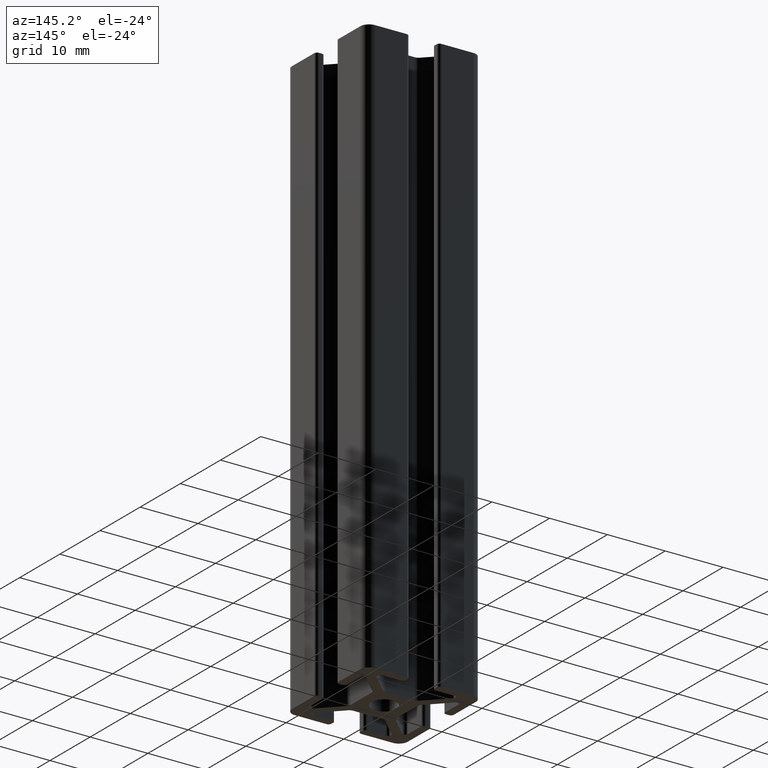
[diagram: clean part render]
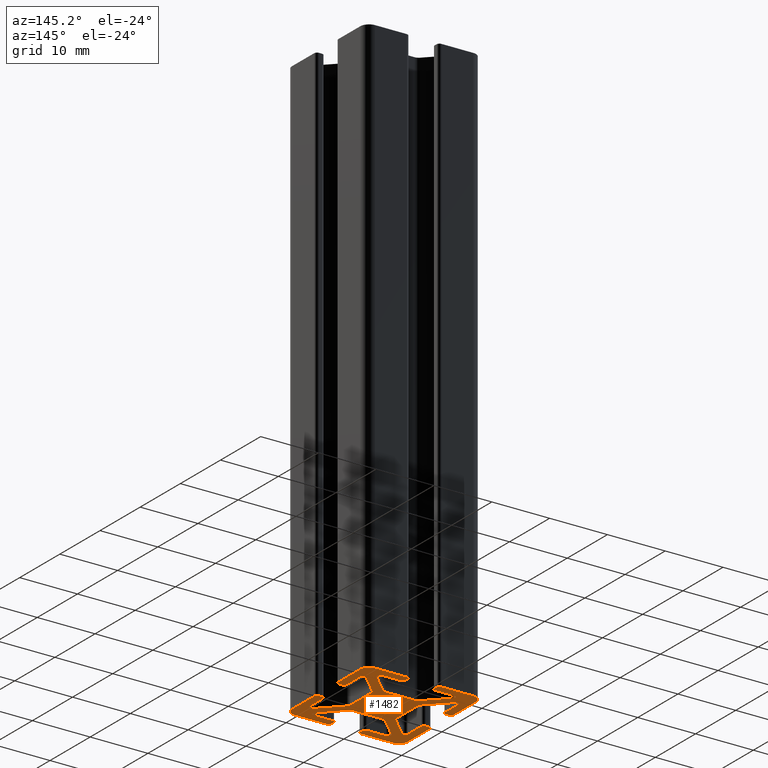
[diagram: same view with one face highlighted and labeled with its STEP entity id]
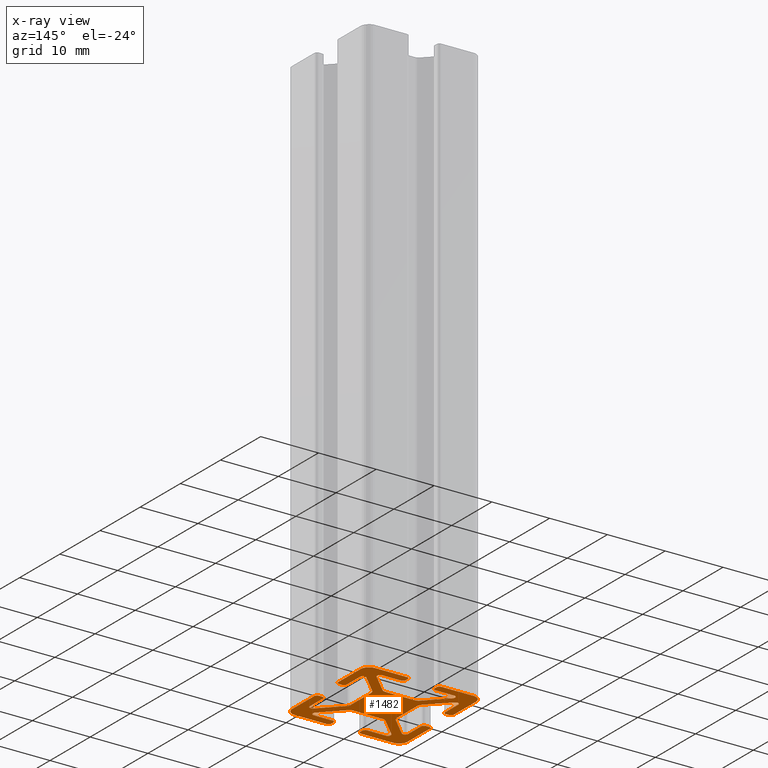
[diagram: x-ray of the same camera — body ghosted, the highlighted face saturated]
A machine part, auxiliary view. The second image highlights one B-rep face of the part: STEP entity #1482.
The next image is the same camera in x-ray: the body ghosted, the highlighted face saturated — about 0% of this face is hidden behind the body in this view.
In plain terms, the highlighted planar face has unit normal (0, 0, 1).
Its self-contained STEP definition (entity closure, byte-faithful):
#17=FACE_BOUND('',#208,.T.);
#55=PLANE('',#1633);
#130=FACE_OUTER_BOUND('',#207,.T.);
#207=EDGE_LOOP('',(#1298,#1299,#1300,#1301,#1302,#1303,#1304,#1305,#1306,
#1307,#1308,#1309,#1310,#1311,#1312,#1313,#1314,#1315,#1316,#1317,#1318,
#1319,#1320,#1321,#1322,#1323,#1324,#1325,#1326,#1327,#1328,#1329,#1330,
#1331,#1332,#1333,#1334,#1335,#1336,#1337,#1338,#1339,#1340,#1341,#1342,
#1343,#1344,#1345,#1346,#1347,#1348,#1349,#1350,#1351,#1352,#1353,#1354,
#1355,#1356,#1357,#1358,#1359,#1360,#1361,#1362,#1363,#1364,#1365,#1366,
#1367,#1368,#1369));
#208=EDGE_LOOP('',(#1370));
#212=LINE('',#2092,#356);
#216=LINE('',#2104,#360);
#220=LINE('',#2116,#364);
#224=LINE('',#2128,#368);
#228=LINE('',#2140,#372);
#232=LINE('',#2152,#376);
#236=LINE('',#2164,#380);
#241=LINE('',#2184,#385);
#246=LINE('',#2197,#390);
#250=LINE('',#2209,#394);
#254=LINE('',#2221,#398);
#258=LINE('',#2233,#402);
#262=LINE('',#2245,#406);
#268=LINE('',#2266,#412);
#271=LINE('',#2277,#415);
#277=LINE('',#2298,#421);
#281=LINE('',#2310,#425);
#285=LINE('',#2322,#429);
#289=LINE('',#2334,#433);
#293=LINE('',#2346,#437);
#297=LINE('',#2358,#441);
#303=LINE('',#2377,#447);
#307=LINE('',#2389,#451);
#311=LINE('',#2401,#455);
#315=LINE('',#2413,#459);
#321=LINE('',#2434,#465);
#325=LINE('',#2446,#469);
#328=LINE('',#2455,#472);
#329=LINE('',#2458,#473);
#334=LINE('',#2467,#478);
#335=LINE('',#2470,#479);
#340=LINE('',#2479,#484);
#341=LINE('',#2482,#485);
#344=LINE('',#2488,#488);
#349=LINE('',#2497,#493);
#352=LINE('',#2512,#496);
#356=VECTOR('',#1647,0.499999999999998);
#360=VECTOR('',#1659,3.23223304703363);
#364=VECTOR('',#1671,4.74264068711928);
#368=VECTOR('',#1683,5.05025253169417);
#372=VECTOR('',#1695,4.74264068711928);
#376=VECTOR('',#1707,3.23223304703364);
#380=VECTOR('',#1719,0.500000000000003);
#385=VECTOR('',#1738,3.23223304703363);
#390=VECTOR('',#1751,4.74264068711928);
#394=VECTOR('',#1763,5.05025253169417);
#398=VECTOR('',#1775,4.74264068711927);
#402=VECTOR('',#1787,3.23223304703363);
#406=VECTOR('',#1799,0.5);
#412=VECTOR('',#1819,0.5);
#415=VECTOR('',#1830,0.500000000000003);
#421=VECTOR('',#1850,0.499999999999998);
#425=VECTOR('',#1862,3.23223304703363);
#429=VECTOR('',#1874,4.74264068711928);
#433=VECTOR('',#1886,5.05025253169418);
#437=VECTOR('',#1898,4.74264068711928);
#441=VECTOR('',#1910,3.23223304703363);
#447=VECTOR('',#1930,5.05025253169418);
#451=VECTOR('',#1942,4.74264068711929);
#455=VECTOR('',#1954,3.23223304703364);
#459=VECTOR('',#1966,0.500000000000002);
#465=VECTOR('',#1986,0.499999999999998);
#469=VECTOR('',#1998,3.23223304703363);
#472=VECTOR('',#2009,4.74264068711928);
#473=VECTOR('',#2012,5.50000000000003);
#478=VECTOR('',#2019,5.50000000000001);
#479=VECTOR('',#2022,5.49999999999999);
#484=VECTOR('',#2029,5.50000000000001);
#485=VECTOR('',#2032,5.50000000000001);
#488=VECTOR('',#2037,5.49999999999999);
#493=VECTOR('',#2044,5.49999999999999);
#496=VECTOR('',#2067,5.50000000000001);
#498=CIRCLE('',#1487,0.5);
#500=CIRCLE('',#1491,0.500000000000004);
#502=CIRCLE('',#1495,0.5);
#504=CIRCLE('',#1499,0.999999999999998);
#506=CIRCLE('',#1503,0.999999999999996);
#508=CIRCLE('',#1507,0.500000000000002);
#510=CIRCLE('',#1511,0.5);
#512=CIRCLE('',#1515,0.499999999999997);
#514=CIRCLE('',#1518,2.15);
#516=CIRCLE('',#1522,0.499999999999999);
#518=CIRCLE('',#1526,1.);
#520=CIRCLE('',#1530,0.999999999999999);
#522=CIRCLE('',#1534,0.500000000000001);
#524=CIRCLE('',#1538,0.5);
#526=CIRCLE('',#1542,0.499999999999998);
#528=CIRCLE('',#1545,0.5);
#530=CIRCLE('',#1549,0.5);
#532=CIRCLE('',#1553,0.5);
#534=CIRCLE('',#1556,0.5);
#536=CIRCLE('',#1560,0.5);
#538=CIRCLE('',#1564,0.500000000000004);
#540=CIRCLE('',#1568,1.);
#542=CIRCLE('',#1572,1.);
#544=CIRCLE('',#1576,0.500000000000002);
#546=CIRCLE('',#1580,0.5);
#548=CIRCLE('',#1583,0.999999999999996);
#550=CIRCLE('',#1587,0.999999999999997);
#552=CIRCLE('',#1591,0.5);
#554=CIRCLE('',#1595,0.5);
#556=CIRCLE('',#1599,0.5);
#558=CIRCLE('',#1602,0.5);
#560=CIRCLE('',#1606,0.5);
#562=CIRCLE('',#1610,0.5);
#567=CIRCLE('',#1625,1.5);
#568=CIRCLE('',#1627,1.5);
#569=CIRCLE('',#1630,1.5);
#570=CIRCLE('',#1632,1.5);
#573=VERTEX_POINT('',#2083);
#574=VERTEX_POINT('',#2085);
#576=VERTEX_POINT('',#2091);
#578=VERTEX_POINT('',#2097);
#580=VERTEX_POINT('',#2103);
#582=VERTEX_POINT('',#2109);
#584=VERTEX_POINT('',#2115);
#586=VERTEX_POINT('',#2121);
#588=VERTEX_POINT('',#2127);
#590=VERTEX_POINT('',#2133);
#592=VERTEX_POINT('',#2139);
#594=VERTEX_POINT('',#2145);
#596=VERTEX_POINT('',#2151);
#598=VERTEX_POINT('',#2157);
#600=VERTEX_POINT('',#2163);
#602=VERTEX_POINT('',#2169);
#604=VERTEX_POINT('',#2175);
#607=VERTEX_POINT('',#2181);
#608=VERTEX_POINT('',#2183);
#610=VERTEX_POINT('',#2189);
#612=VERTEX_POINT('',#2195);
#614=VERTEX_POINT('',#2201);
#616=VERTEX_POINT('',#2207);
#618=VERTEX_POINT('',#2213);
#620=VERTEX_POINT('',#2219);
#622=VERTEX_POINT('',#2225);
#624=VERTEX_POINT('',#2231);
#626=VERTEX_POINT('',#2237);
#628=VERTEX_POINT('',#2243);
#630=VERTEX_POINT('',#2249);
#633=VERTEX_POINT('',#2256);
#634=VERTEX_POINT('',#2258);
#636=VERTEX_POINT('',#2264);
#639=VERTEX_POINT('',#2274);
#640=VERTEX_POINT('',#2276);
#642=VERTEX_POINT('',#2282);
#645=VERTEX_POINT('',#2289);
#646=VERTEX_POINT('',#2291);
#648=VERTEX_POINT('',#2297);
#650=VERTEX_POINT('',#2303);
#652=VERTEX_POINT('',#2309);
#654=VERTEX_POINT('',#2315);
#656=VERTEX_POINT('',#2321);
#658=VERTEX_POINT('',#2327);
#660=VERTEX_POINT('',#2333);
#662=VERTEX_POINT('',#2339);
#664=VERTEX_POINT('',#2345);
#666=VERTEX_POINT('',#2351);
#668=VERTEX_POINT('',#2357);
#671=VERTEX_POINT('',#2367);
#672=VERTEX_POINT('',#2369);
#674=VERTEX_POINT('',#2375);
#676=VERTEX_POINT('',#2381);
#678=VERTEX_POINT('',#2387);
#680=VERTEX_POINT('',#2393);
#682=VERTEX_POINT('',#2399);
#684=VERTEX_POINT('',#2405);
#686=VERTEX_POINT('',#2411);
#688=VERTEX_POINT('',#2417);
#691=VERTEX_POINT('',#2424);
#692=VERTEX_POINT('',#2426);
#694=VERTEX_POINT('',#2432);
#696=VERTEX_POINT('',#2438);
#698=VERTEX_POINT('',#2444);
#700=VERTEX_POINT('',#2450);
#701=VERTEX_POINT('',#2457);
#704=VERTEX_POINT('',#2465);
#705=VERTEX_POINT('',#2469);
#708=VERTEX_POINT('',#2477);
#709=VERTEX_POINT('',#2481);
#711=VERTEX_POINT('',#2487);
#714=VERTEX_POINT('',#2495);
#716=VERTEX_POINT('',#2510);
#719=EDGE_CURVE('',#574,#573,#498,.T.);
#722=EDGE_CURVE('',#576,#574,#212,.T.);
#725=EDGE_CURVE('',#578,#576,#500,.T.);
#728=EDGE_CURVE('',#580,#578,#216,.T.);
#731=EDGE_CURVE('',#582,#580,#502,.T.);
#734=EDGE_CURVE('',#584,#582,#220,.T.);
#737=EDGE_CURVE('',#586,#584,#504,.T.);
#740=EDGE_CURVE('',#588,#586,#224,.T.);
#743=EDGE_CURVE('',#590,#588,#506,.T.);
#746=EDGE_CURVE('',#592,#590,#228,.T.);
#749=EDGE_CURVE('',#594,#592,#508,.T.);
#752=EDGE_CURVE('',#596,#594,#232,.T.);
#755=EDGE_CURVE('',#598,#596,#510,.T.);
#758=EDGE_CURVE('',#600,#598,#236,.T.);
#761=EDGE_CURVE('',#602,#600,#512,.T.);
#764=EDGE_CURVE('',#604,#604,#514,.T.);
#767=EDGE_CURVE('',#608,#607,#241,.T.);
#771=EDGE_CURVE('',#607,#610,#516,.T.);
#774=EDGE_CURVE('',#610,#612,#246,.T.);
#777=EDGE_CURVE('',#612,#614,#518,.T.);
#780=EDGE_CURVE('',#614,#616,#250,.T.);
#783=EDGE_CURVE('',#616,#618,#520,.T.);
#786=EDGE_CURVE('',#618,#620,#254,.T.);
#789=EDGE_CURVE('',#620,#622,#522,.T.);
#792=EDGE_CURVE('',#622,#624,#258,.T.);
#795=EDGE_CURVE('',#624,#626,#524,.T.);
#798=EDGE_CURVE('',#626,#628,#262,.T.);
#801=EDGE_CURVE('',#628,#630,#526,.T.);
#804=EDGE_CURVE('',#634,#633,#528,.T.);
#808=EDGE_CURVE('',#633,#636,#268,.T.);
#810=EDGE_CURVE('',#636,#608,#530,.T.);
#813=EDGE_CURVE('',#640,#639,#271,.T.);
#816=EDGE_CURVE('',#642,#640,#532,.T.);
#820=EDGE_CURVE('',#646,#645,#534,.T.);
#823=EDGE_CURVE('',#648,#646,#277,.T.);
#826=EDGE_CURVE('',#650,#648,#536,.T.);
#829=EDGE_CURVE('',#652,#650,#281,.T.);
#832=EDGE_CURVE('',#654,#652,#538,.T.);
#835=EDGE_CURVE('',#656,#654,#285,.T.);
#838=EDGE_CURVE('',#658,#656,#540,.T.);
#841=EDGE_CURVE('',#660,#658,#289,.T.);
#844=EDGE_CURVE('',#662,#660,#542,.T.);
#847=EDGE_CURVE('',#664,#662,#293,.T.);
#850=EDGE_CURVE('',#666,#664,#544,.T.);
#853=EDGE_CURVE('',#668,#666,#297,.T.);
#856=EDGE_CURVE('',#639,#668,#546,.T.);
#859=EDGE_CURVE('',#672,#671,#548,.T.);
#863=EDGE_CURVE('',#671,#674,#303,.T.);
#866=EDGE_CURVE('',#674,#676,#550,.T.);
#869=EDGE_CURVE('',#676,#678,#307,.T.);
#872=EDGE_CURVE('',#678,#680,#552,.T.);
#875=EDGE_CURVE('',#680,#682,#311,.T.);
#878=EDGE_CURVE('',#682,#684,#554,.T.);
#881=EDGE_CURVE('',#684,#686,#315,.T.);
#884=EDGE_CURVE('',#686,#688,#556,.T.);
#887=EDGE_CURVE('',#692,#691,#558,.T.);
#891=EDGE_CURVE('',#691,#694,#321,.T.);
#894=EDGE_CURVE('',#694,#696,#560,.T.);
#897=EDGE_CURVE('',#696,#698,#325,.T.);
#900=EDGE_CURVE('',#698,#700,#562,.T.);
#902=EDGE_CURVE('',#700,#672,#328,.T.);
#903=EDGE_CURVE('',#701,#602,#329,.T.);
#908=EDGE_CURVE('',#573,#704,#334,.T.);
#909=EDGE_CURVE('',#705,#634,#335,.T.);
#914=EDGE_CURVE('',#630,#708,#340,.T.);
#915=EDGE_CURVE('',#709,#642,#341,.T.);
#918=EDGE_CURVE('',#711,#692,#344,.T.);
#923=EDGE_CURVE('',#688,#714,#349,.T.);
#929=EDGE_CURVE('',#708,#701,#567,.T.);
#930=EDGE_CURVE('',#704,#709,#568,.T.);
#932=EDGE_CURVE('',#645,#716,#352,.T.);
#933=EDGE_CURVE('',#716,#711,#569,.T.);
#934=EDGE_CURVE('',#714,#705,#570,.T.);
#1298=ORIENTED_EDGE('',*,*,#719,.T.);
#1299=ORIENTED_EDGE('',*,*,#908,.T.);
#1300=ORIENTED_EDGE('',*,*,#930,.T.);
#1301=ORIENTED_EDGE('',*,*,#915,.T.);
#1302=ORIENTED_EDGE('',*,*,#816,.T.);
#1303=ORIENTED_EDGE('',*,*,#813,.T.);
#1304=ORIENTED_EDGE('',*,*,#856,.T.);
#1305=ORIENTED_EDGE('',*,*,#853,.T.);
#1306=ORIENTED_EDGE('',*,*,#850,.T.);
#1307=ORIENTED_EDGE('',*,*,#847,.T.);
#1308=ORIENTED_EDGE('',*,*,#844,.T.);
#1309=ORIENTED_EDGE('',*,*,#841,.T.);
#1310=ORIENTED_EDGE('',*,*,#838,.T.);
#1311=ORIENTED_EDGE('',*,*,#835,.T.);
#1312=ORIENTED_EDGE('',*,*,#832,.T.);
#1313=ORIENTED_EDGE('',*,*,#829,.T.);
#1314=ORIENTED_EDGE('',*,*,#826,.T.);
#1315=ORIENTED_EDGE('',*,*,#823,.T.);
#1316=ORIENTED_EDGE('',*,*,#820,.T.);
#1317=ORIENTED_EDGE('',*,*,#932,.T.);
#1318=ORIENTED_EDGE('',*,*,#933,.T.);
#1319=ORIENTED_EDGE('',*,*,#918,.T.);
#1320=ORIENTED_EDGE('',*,*,#887,.T.);
#1321=ORIENTED_EDGE('',*,*,#891,.T.);
#1322=ORIENTED_EDGE('',*,*,#894,.T.);
#1323=ORIENTED_EDGE('',*,*,#897,.T.);
#1324=ORIENTED_EDGE('',*,*,#900,.T.);
#1325=ORIENTED_EDGE('',*,*,#902,.T.);
#1326=ORIENTED_EDGE('',*,*,#859,.T.);
#1327=ORIENTED_EDGE('',*,*,#863,.T.);
#1328=ORIENTED_EDGE('',*,*,#866,.T.);
#1329=ORIENTED_EDGE('',*,*,#869,.T.);
#1330=ORIENTED_EDGE('',*,*,#872,.T.);
#1331=ORIENTED_EDGE('',*,*,#875,.T.);
#1332=ORIENTED_EDGE('',*,*,#878,.T.);
#1333=ORIENTED_EDGE('',*,*,#881,.T.);
#1334=ORIENTED_EDGE('',*,*,#884,.T.);
#1335=ORIENTED_EDGE('',*,*,#923,.T.);
#1336=ORIENTED_EDGE('',*,*,#934,.T.);
#1337=ORIENTED_EDGE('',*,*,#909,.T.);
#1338=ORIENTED_EDGE('',*,*,#804,.T.);
#1339=ORIENTED_EDGE('',*,*,#808,.T.);
#1340=ORIENTED_EDGE('',*,*,#810,.T.);
#1341=ORIENTED_EDGE('',*,*,#767,.T.);
#1342=ORIENTED_EDGE('',*,*,#771,.T.);
#1343=ORIENTED_EDGE('',*,*,#774,.T.);
#1344=ORIENTED_EDGE('',*,*,#777,.T.);
#1345=ORIENTED_EDGE('',*,*,#780,.T.);
#1346=ORIENTED_EDGE('',*,*,#783,.T.);
#1347=ORIENTED_EDGE('',*,*,#786,.T.);
#1348=ORIENTED_EDGE('',*,*,#789,.T.);
#1349=ORIENTED_EDGE('',*,*,#792,.T.);
#1350=ORIENTED_EDGE('',*,*,#795,.T.);
#1351=ORIENTED_EDGE('',*,*,#798,.T.);
#1352=ORIENTED_EDGE('',*,*,#801,.T.);
#1353=ORIENTED_EDGE('',*,*,#914,.T.);
#1354=ORIENTED_EDGE('',*,*,#929,.T.);
#1355=ORIENTED_EDGE('',*,*,#903,.T.);
#1356=ORIENTED_EDGE('',*,*,#761,.T.);
#1357=ORIENTED_EDGE('',*,*,#758,.T.);
#1358=ORIENTED_EDGE('',*,*,#755,.T.);
#1359=ORIENTED_EDGE('',*,*,#752,.T.);
#1360=ORIENTED_EDGE('',*,*,#749,.T.);
#1361=ORIENTED_EDGE('',*,*,#746,.T.);
#1362=ORIENTED_EDGE('',*,*,#743,.T.);
#1363=ORIENTED_EDGE('',*,*,#740,.T.);
#1364=ORIENTED_EDGE('',*,*,#737,.T.);
#1365=ORIENTED_EDGE('',*,*,#734,.T.);
#1366=ORIENTED_EDGE('',*,*,#731,.T.);
#1367=ORIENTED_EDGE('',*,*,#728,.T.);
#1368=ORIENTED_EDGE('',*,*,#725,.T.);
#1369=ORIENTED_EDGE('',*,*,#722,.T.);
#1370=ORIENTED_EDGE('',*,*,#764,.T.);
#1482=ADVANCED_FACE('',(#130,#17),#55,.F.);
#1487=AXIS2_PLACEMENT_3D('',#2086,#1641,#1642);
#1491=AXIS2_PLACEMENT_3D('',#2098,#1653,#1654);
#1495=AXIS2_PLACEMENT_3D('',#2110,#1665,#1666);
#1499=AXIS2_PLACEMENT_3D('',#2122,#1677,#1678);
#1503=AXIS2_PLACEMENT_3D('',#2134,#1689,#1690);
#1507=AXIS2_PLACEMENT_3D('',#2146,#1701,#1702);
#1511=AXIS2_PLACEMENT_3D('',#2158,#1713,#1714);
#1515=AXIS2_PLACEMENT_3D('',#2170,#1725,#1726);
#1518=AXIS2_PLACEMENT_3D('',#2176,#1732,#1733);
#1522=AXIS2_PLACEMENT_3D('',#2191,#1745,#1746);
#1526=AXIS2_PLACEMENT_3D('',#2203,#1757,#1758);
#1530=AXIS2_PLACEMENT_3D('',#2215,#1769,#1770);
#1534=AXIS2_PLACEMENT_3D('',#2227,#1781,#1782);
#1538=AXIS2_PLACEMENT_3D('',#2239,#1793,#1794);
#1542=AXIS2_PLACEMENT_3D('',#2251,#1805,#1806);
#1545=AXIS2_PLACEMENT_3D('',#2259,#1812,#1813);
#1549=AXIS2_PLACEMENT_3D('',#2269,#1824,#1825);
#1553=AXIS2_PLACEMENT_3D('',#2283,#1836,#1837);
#1556=AXIS2_PLACEMENT_3D('',#2292,#1844,#1845);
#1560=AXIS2_PLACEMENT_3D('',#2304,#1856,#1857);
#1564=AXIS2_PLACEMENT_3D('',#2316,#1868,#1869);
#1568=AXIS2_PLACEMENT_3D('',#2328,#1880,#1881);
#1572=AXIS2_PLACEMENT_3D('',#2340,#1892,#1893);
#1576=AXIS2_PLACEMENT_3D('',#2352,#1904,#1905);
#1580=AXIS2_PLACEMENT_3D('',#2362,#1916,#1917);
#1583=AXIS2_PLACEMENT_3D('',#2370,#1923,#1924);
#1587=AXIS2_PLACEMENT_3D('',#2383,#1936,#1937);
#1591=AXIS2_PLACEMENT_3D('',#2395,#1948,#1949);
#1595=AXIS2_PLACEMENT_3D('',#2407,#1960,#1961);
#1599=AXIS2_PLACEMENT_3D('',#2419,#1972,#1973);
#1602=AXIS2_PLACEMENT_3D('',#2427,#1979,#1980);
#1606=AXIS2_PLACEMENT_3D('',#2440,#1992,#1993);
#1610=AXIS2_PLACEMENT_3D('',#2452,#2004,#2005);
#1625=AXIS2_PLACEMENT_3D('',#2506,#2058,#2059);
#1627=AXIS2_PLACEMENT_3D('',#2508,#2062,#2063);
#1630=AXIS2_PLACEMENT_3D('',#2514,#2070,#2071);
#1632=AXIS2_PLACEMENT_3D('',#2516,#2074,#2075);
#1633=AXIS2_PLACEMENT_3D('',#2517,#2076,#2077);
#1641=DIRECTION('center_axis',(0.,0.,-1.));
#1642=DIRECTION('ref_axis',(1.,1.77635683940025E-14,0.));
#1647=DIRECTION('',(-1.,-8.88178419700128E-15,0.));
#1653=DIRECTION('center_axis',(0.,0.,-1.));
#1654=DIRECTION('ref_axis',(8.88178419700121E-15,1.,0.));
#1659=DIRECTION('',(0.,-1.,0.));
#1665=DIRECTION('center_axis',(0.,0.,1.));
#1666=DIRECTION('ref_axis',(0.70710678118655,0.707106781186545,0.));
#1671=DIRECTION('',(-0.707106781186547,0.707106781186548,0.));
#1677=DIRECTION('center_axis',(0.,0.,1.));
#1678=DIRECTION('ref_axis',(1.,-2.22044604925032E-15,0.));
#1683=DIRECTION('',(0.,1.,0.));
#1689=DIRECTION('center_axis',(0.,0.,1.));
#1690=DIRECTION('ref_axis',(0.707106781186549,-0.707106781186546,0.));
#1695=DIRECTION('',(0.707106781186547,0.707106781186548,0.));
#1701=DIRECTION('center_axis',(0.,0.,1.));
#1702=DIRECTION('ref_axis',(-1.,0.,0.));
#1707=DIRECTION('',(0.,-1.,0.));
#1713=DIRECTION('center_axis',(0.,0.,-1.));
#1714=DIRECTION('ref_axis',(-1.,-4.44089209850062E-15,0.));
#1719=DIRECTION('',(1.,0.,0.));
#1725=DIRECTION('center_axis',(0.,0.,-1.));
#1726=DIRECTION('ref_axis',(8.88178419700132E-15,-1.,0.));
#1732=DIRECTION('center_axis',(0.,0.,1.));
#1733=DIRECTION('ref_axis',(-1.,0.,0.));
#1738=DIRECTION('',(1.,0.,0.));
#1745=DIRECTION('center_axis',(0.,0.,1.));
#1746=DIRECTION('ref_axis',(0.,-1.,0.));
#1751=DIRECTION('',(-0.707106781186547,0.707106781186547,0.));
#1757=DIRECTION('center_axis',(0.,0.,1.));
#1758=DIRECTION('ref_axis',(0.707106781186549,0.707106781186546,0.));
#1763=DIRECTION('',(-1.,-4.39670300705822E-16,0.));
#1769=DIRECTION('center_axis',(0.,0.,1.));
#1770=DIRECTION('ref_axis',(-2.22044604925032E-15,1.,0.));
#1775=DIRECTION('',(-0.707106781186547,-0.707106781186548,0.));
#1781=DIRECTION('center_axis',(0.,0.,1.));
#1782=DIRECTION('ref_axis',(-0.707106781186548,0.707106781186548,0.));
#1787=DIRECTION('',(1.,-6.86969663678217E-16,0.));
#1793=DIRECTION('center_axis',(0.,0.,-1.));
#1794=DIRECTION('ref_axis',(-1.,0.,0.));
#1799=DIRECTION('',(4.44089209850062E-15,-1.,0.));
#1805=DIRECTION('center_axis',(0.,0.,-1.));
#1806=DIRECTION('ref_axis',(-8.88178419700121E-15,1.,0.));
#1812=DIRECTION('center_axis',(0.,0.,-1.));
#1813=DIRECTION('ref_axis',(1.,4.44089209850062E-15,0.));
#1819=DIRECTION('',(0.,1.,0.));
#1824=DIRECTION('center_axis',(0.,0.,-1.));
#1825=DIRECTION('ref_axis',(0.,-1.,0.));
#1830=DIRECTION('',(0.,-1.,0.));
#1836=DIRECTION('center_axis',(0.,0.,-1.));
#1837=DIRECTION('ref_axis',(-1.,0.,0.));
#1844=DIRECTION('center_axis',(0.,0.,-1.));
#1845=DIRECTION('ref_axis',(2.66453525910039E-14,-1.,0.));
#1850=DIRECTION('',(-8.88178419700128E-15,1.,0.));
#1856=DIRECTION('center_axis',(0.,0.,-1.));
#1857=DIRECTION('ref_axis',(1.,0.,0.));
#1862=DIRECTION('',(-1.,2.74787865471287E-15,0.));
#1868=DIRECTION('center_axis',(0.,0.,1.));
#1869=DIRECTION('ref_axis',(0.707106781186554,-0.707106781186541,0.));
#1874=DIRECTION('',(0.707106781186549,0.707106781186546,0.));
#1880=DIRECTION('center_axis',(0.,0.,1.));
#1881=DIRECTION('ref_axis',(4.44089209850061E-15,-1.,0.));
#1886=DIRECTION('',(1.,-4.39670300705821E-16,0.));
#1892=DIRECTION('center_axis',(0.,0.,1.));
#1893=DIRECTION('ref_axis',(-0.707106781186546,-0.707106781186549,0.));
#1898=DIRECTION('',(0.707106781186547,-0.707106781186548,0.));
#1904=DIRECTION('center_axis',(0.,0.,1.));
#1905=DIRECTION('ref_axis',(0.,1.,0.));
#1910=DIRECTION('',(-1.,2.74787865471287E-15,0.));
#1916=DIRECTION('center_axis',(0.,0.,-1.));
#1917=DIRECTION('ref_axis',(-4.44089209850062E-15,1.,0.));
#1923=DIRECTION('center_axis',(0.,0.,1.));
#1924=DIRECTION('ref_axis',(-0.707106781186549,0.707106781186546,0.));
#1930=DIRECTION('',(-8.79340601411642E-16,-1.,0.));
#1936=DIRECTION('center_axis',(0.,0.,1.));
#1937=DIRECTION('ref_axis',(-1.,0.,0.));
#1942=DIRECTION('',(0.707106781186547,-0.707106781186548,0.));
#1948=DIRECTION('center_axis',(0.,0.,1.));
#1949=DIRECTION('ref_axis',(-0.707106781186545,-0.70710678118655,0.));
#1954=DIRECTION('',(0.,1.,0.));
#1960=DIRECTION('center_axis',(0.,0.,-1.));
#1961=DIRECTION('ref_axis',(4.44089209850062E-15,-1.,0.));
#1966=DIRECTION('',(1.,0.,0.));
#1972=DIRECTION('center_axis',(0.,0.,-1.));
#1973=DIRECTION('ref_axis',(-1.,1.33226762955022E-14,0.));
#1979=DIRECTION('center_axis',(0.,0.,-1.));
#1980=DIRECTION('ref_axis',(0.,1.,0.));
#1986=DIRECTION('',(-1.,0.,0.));
#1992=DIRECTION('center_axis',(0.,0.,-1.));
#1993=DIRECTION('ref_axis',(1.,4.44089209850061E-15,0.));
#1998=DIRECTION('',(0.,1.,0.));
#2004=DIRECTION('center_axis',(0.,0.,1.));
#2005=DIRECTION('ref_axis',(1.,0.,0.));
#2009=DIRECTION('',(-0.707106781186548,-0.707106781186547,0.));
#2012=DIRECTION('',(-2.61228946970625E-16,1.,0.));
#2019=DIRECTION('',(-2.61228946970625E-16,1.,0.));
#2022=DIRECTION('',(-1.,0.,0.));
#2029=DIRECTION('',(-1.,0.,0.));
#2032=DIRECTION('',(1.,-6.53072367426563E-17,0.));
#2037=DIRECTION('',(2.61228946970625E-16,-1.,0.));
#2044=DIRECTION('',(2.61228946970625E-16,-1.,0.));
#2058=DIRECTION('center_axis',(0.,0.,-1.));
#2059=DIRECTION('ref_axis',(1.,-1.48029736616688E-15,0.));
#2062=DIRECTION('center_axis',(0.,0.,-1.));
#2063=DIRECTION('ref_axis',(1.48029736616687E-15,-1.,0.));
#2067=DIRECTION('',(1.,-6.53072367426563E-17,0.));
#2070=DIRECTION('center_axis',(0.,0.,-1.));
#2071=DIRECTION('ref_axis',(-1.,7.40148683083439E-16,0.));
#2074=DIRECTION('center_axis',(0.,0.,-1.));
#2075=DIRECTION('ref_axis',(7.40148683083438E-16,1.,0.));
#2076=DIRECTION('center_axis',(0.,0.,1.));
#2077=DIRECTION('ref_axis',(1.,0.,0.));
#2083=CARTESIAN_POINT('',(-10.,2.99999999999999,0.));
#2085=CARTESIAN_POINT('',(-9.5,2.5,0.));
#2086=CARTESIAN_POINT('Origin',(-9.5,3.,0.));
#2091=CARTESIAN_POINT('',(-9.,2.5,0.));
#2092=CARTESIAN_POINT('',(-4.50000000000001,2.50000000000004,0.));
#2097=CARTESIAN_POINT('',(-8.49999999999999,3.,0.));
#2098=CARTESIAN_POINT('Origin',(-9.,3.,0.));
#2103=CARTESIAN_POINT('',(-8.49999999999999,6.23223304703363,0.));
#2104=CARTESIAN_POINT('',(-8.49999999999999,3.11611652351682,0.));
#2109=CARTESIAN_POINT('',(-7.64644660940672,6.58578643762691,0.));
#2110=CARTESIAN_POINT('Origin',(-7.99999999999999,6.23223304703363,0.));
#2115=CARTESIAN_POINT('',(-4.29289321881345,3.23223304703363,0.));
#2116=CARTESIAN_POINT('',(-2.41161165235168,1.35095148057186,0.));
#2121=CARTESIAN_POINT('',(-4.,2.52512626584709,0.));
#2122=CARTESIAN_POINT('Origin',(-5.,2.52512626584709,0.));
#2127=CARTESIAN_POINT('',(-4.,-2.52512626584708,0.));
#2128=CARTESIAN_POINT('',(-4.,-1.26256313292354,0.));
#2133=CARTESIAN_POINT('',(-4.29289321881345,-3.23223304703363,0.));
#2134=CARTESIAN_POINT('Origin',(-5.,-2.52512626584709,0.));
#2139=CARTESIAN_POINT('',(-7.64644660940672,-6.58578643762691,0.));
#2140=CARTESIAN_POINT('',(-4.08838834764832,-3.0277281758685,0.));
#2145=CARTESIAN_POINT('',(-8.5,-6.23223304703364,0.));
#2146=CARTESIAN_POINT('Origin',(-8.,-6.23223304703364,0.));
#2151=CARTESIAN_POINT('',(-8.5,-3.,0.));
#2152=CARTESIAN_POINT('',(-8.5,-1.5,0.));
#2157=CARTESIAN_POINT('',(-9.,-2.5,0.));
#2158=CARTESIAN_POINT('Origin',(-9.,-3.,0.));
#2163=CARTESIAN_POINT('',(-9.5,-2.5,0.));
#2164=CARTESIAN_POINT('',(-4.75,-2.5,0.));
#2169=CARTESIAN_POINT('',(-10.,-2.99999999999997,0.));
#2170=CARTESIAN_POINT('Origin',(-9.5,-3.,0.));
#2175=CARTESIAN_POINT('',(2.15,2.63299061816681E-16,0.));
#2176=CARTESIAN_POINT('Origin',(0.,0.,0.));
#2181=CARTESIAN_POINT('',(6.23223304703363,-8.5,0.));
#2183=CARTESIAN_POINT('',(3.,-8.5,0.));
#2184=CARTESIAN_POINT('',(1.5,-8.5,0.));
#2189=CARTESIAN_POINT('',(6.5857864376269,-7.64644660940673,0.));
#2191=CARTESIAN_POINT('Origin',(6.23223304703363,-8.,0.));
#2195=CARTESIAN_POINT('',(3.23223304703363,-4.29289321881346,0.));
#2197=CARTESIAN_POINT('',(3.02772817586849,-4.08838834764832,0.));
#2201=CARTESIAN_POINT('',(2.52512626584708,-4.,0.));
#2203=CARTESIAN_POINT('Origin',(2.52512626584708,-5.,0.));
#2207=CARTESIAN_POINT('',(-2.52512626584709,-4.,0.));
#2209=CARTESIAN_POINT('',(1.26256313292354,-4.,0.));
#2213=CARTESIAN_POINT('',(-3.23223304703363,-4.29289321881346,0.));
#2215=CARTESIAN_POINT('Origin',(-2.52512626584709,-5.,0.));
#2219=CARTESIAN_POINT('',(-6.5857864376269,-7.64644660940673,0.));
#2221=CARTESIAN_POINT('',(-1.35095148057186,-2.41161165235168,0.));
#2225=CARTESIAN_POINT('',(-6.23223304703363,-8.5,0.));
#2227=CARTESIAN_POINT('Origin',(-6.23223304703363,-8.,0.));
#2231=CARTESIAN_POINT('',(-3.,-8.5,0.));
#2233=CARTESIAN_POINT('',(-3.11611652351682,-8.5,0.));
#2237=CARTESIAN_POINT('',(-2.5,-9.,0.));
#2239=CARTESIAN_POINT('Origin',(-3.,-9.,0.));
#2243=CARTESIAN_POINT('',(-2.49999999999999,-9.5,0.));
#2245=CARTESIAN_POINT('',(-2.50000000000002,-4.50000000000001,0.));
#2249=CARTESIAN_POINT('',(-2.99999999999999,-10.,0.));
#2251=CARTESIAN_POINT('Origin',(-2.99999999999999,-9.5,0.));
#2256=CARTESIAN_POINT('',(2.5,-9.5,0.));
#2258=CARTESIAN_POINT('',(3.00000000000001,-9.99999999999999,0.));
#2259=CARTESIAN_POINT('Origin',(3.,-9.5,0.));
#2264=CARTESIAN_POINT('',(2.5,-9.,0.));
#2266=CARTESIAN_POINT('',(2.5,-4.75,0.));
#2269=CARTESIAN_POINT('Origin',(3.,-9.,0.));
#2274=CARTESIAN_POINT('',(-2.5,9.,0.));
#2276=CARTESIAN_POINT('',(-2.5,9.5,0.));
#2277=CARTESIAN_POINT('',(-2.5,4.75,0.));
#2282=CARTESIAN_POINT('',(-2.99999999999999,10.,0.));
#2283=CARTESIAN_POINT('Origin',(-3.,9.5,0.));
#2289=CARTESIAN_POINT('',(2.99999999999999,10.,0.));
#2291=CARTESIAN_POINT('',(2.5,9.5,0.));
#2292=CARTESIAN_POINT('Origin',(3.,9.5,0.));
#2297=CARTESIAN_POINT('',(2.5,9.,0.));
#2298=CARTESIAN_POINT('',(2.50000000000004,4.50000000000001,0.));
#2303=CARTESIAN_POINT('',(3.,8.50000000000001,0.));
#2304=CARTESIAN_POINT('Origin',(3.,9.,0.));
#2309=CARTESIAN_POINT('',(6.23223304703364,8.5,0.));
#2310=CARTESIAN_POINT('',(3.11611652351683,8.50000000000001,0.));
#2315=CARTESIAN_POINT('',(6.58578643762691,7.64644660940672,0.));
#2316=CARTESIAN_POINT('Origin',(6.23223304703363,7.99999999999999,0.));
#2321=CARTESIAN_POINT('',(3.23223304703364,4.29289321881346,0.));
#2322=CARTESIAN_POINT('',(1.35095148057186,2.41161165235169,0.));
#2327=CARTESIAN_POINT('',(2.52512626584709,4.,0.));
#2328=CARTESIAN_POINT('Origin',(2.52512626584709,5.00000000000001,0.));
#2333=CARTESIAN_POINT('',(-2.52512626584709,4.00000000000001,0.));
#2334=CARTESIAN_POINT('',(-1.26256313292354,4.00000000000001,0.));
#2339=CARTESIAN_POINT('',(-3.23223304703363,4.29289321881346,0.));
#2340=CARTESIAN_POINT('Origin',(-2.52512626584709,5.00000000000001,0.));
#2345=CARTESIAN_POINT('',(-6.5857864376269,7.64644660940673,0.));
#2346=CARTESIAN_POINT('',(-3.0277281758685,4.08838834764832,0.));
#2351=CARTESIAN_POINT('',(-6.23223304703363,8.50000000000001,0.));
#2352=CARTESIAN_POINT('Origin',(-6.23223304703363,8.00000000000001,0.));
#2357=CARTESIAN_POINT('',(-3.,8.5,0.));
#2358=CARTESIAN_POINT('',(-1.49999999999999,8.5,0.));
#2362=CARTESIAN_POINT('Origin',(-3.,9.,0.));
#2367=CARTESIAN_POINT('',(4.00000000000001,2.52512626584709,0.));
#2369=CARTESIAN_POINT('',(4.29289321881346,3.23223304703364,0.));
#2370=CARTESIAN_POINT('Origin',(5.,2.52512626584709,0.));
#2375=CARTESIAN_POINT('',(4.,-2.52512626584709,0.));
#2377=CARTESIAN_POINT('',(4.,1.26256313292354,0.));
#2381=CARTESIAN_POINT('',(4.29289321881345,-3.23223304703363,0.));
#2383=CARTESIAN_POINT('Origin',(5.,-2.52512626584709,0.));
#2387=CARTESIAN_POINT('',(7.64644660940673,-6.58578643762691,0.));
#2389=CARTESIAN_POINT('',(2.41161165235168,-1.35095148057186,0.));
#2393=CARTESIAN_POINT('',(8.5,-6.23223304703364,0.));
#2395=CARTESIAN_POINT('Origin',(8.,-6.23223304703363,0.));
#2399=CARTESIAN_POINT('',(8.5,-3.,0.));
#2401=CARTESIAN_POINT('',(8.5,-3.11611652351682,0.));
#2405=CARTESIAN_POINT('',(9.,-2.5,0.));
#2407=CARTESIAN_POINT('Origin',(9.,-3.,0.));
#2411=CARTESIAN_POINT('',(9.5,-2.5,0.));
#2413=CARTESIAN_POINT('',(4.5,-2.5,0.));
#2417=CARTESIAN_POINT('',(9.99999999999999,-3.00000000000001,0.));
#2419=CARTESIAN_POINT('Origin',(9.5,-3.,0.));
#2424=CARTESIAN_POINT('',(9.5,2.5,0.));
#2426=CARTESIAN_POINT('',(10.,3.00000000000001,0.));
#2427=CARTESIAN_POINT('Origin',(9.5,3.,0.));
#2432=CARTESIAN_POINT('',(9.,2.5,0.));
#2434=CARTESIAN_POINT('',(4.75,2.5,0.));
#2438=CARTESIAN_POINT('',(8.5,3.,0.));
#2440=CARTESIAN_POINT('Origin',(9.,3.,0.));
#2444=CARTESIAN_POINT('',(8.5,6.23223304703363,0.));
#2446=CARTESIAN_POINT('',(8.5,1.5,0.));
#2450=CARTESIAN_POINT('',(7.64644660940673,6.5857864376269,0.));
#2452=CARTESIAN_POINT('Origin',(8.,6.23223304703363,0.));
#2455=CARTESIAN_POINT('',(4.08838834764832,3.0277281758685,0.));
#2457=CARTESIAN_POINT('',(-10.,-8.5,0.));
#2458=CARTESIAN_POINT('',(-10.,4.25,0.));
#2465=CARTESIAN_POINT('',(-10.,8.5,0.));
#2467=CARTESIAN_POINT('',(-10.,4.25,0.));
#2469=CARTESIAN_POINT('',(8.5,-10.,0.));
#2470=CARTESIAN_POINT('',(-4.25,-10.,0.));
#2477=CARTESIAN_POINT('',(-8.5,-10.,0.));
#2479=CARTESIAN_POINT('',(-4.25,-10.,0.));
#2481=CARTESIAN_POINT('',(-8.5,10.,0.));
#2482=CARTESIAN_POINT('',(4.25,10.,0.));
#2487=CARTESIAN_POINT('',(10.,8.5,0.));
#2488=CARTESIAN_POINT('',(10.,-4.25,0.));
#2495=CARTESIAN_POINT('',(10.,-8.5,0.));
#2497=CARTESIAN_POINT('',(10.,-4.25,0.));
#2506=CARTESIAN_POINT('Origin',(-8.5,-8.5,0.));
#2508=CARTESIAN_POINT('Origin',(-8.5,8.5,0.));
#2510=CARTESIAN_POINT('',(8.5,10.,0.));
#2512=CARTESIAN_POINT('',(4.25,10.,0.));
#2514=CARTESIAN_POINT('Origin',(8.5,8.5,0.));
#2516=CARTESIAN_POINT('Origin',(8.5,-8.5,0.));
#2517=CARTESIAN_POINT('Origin',(1.11022302462516E-15,0.,0.));